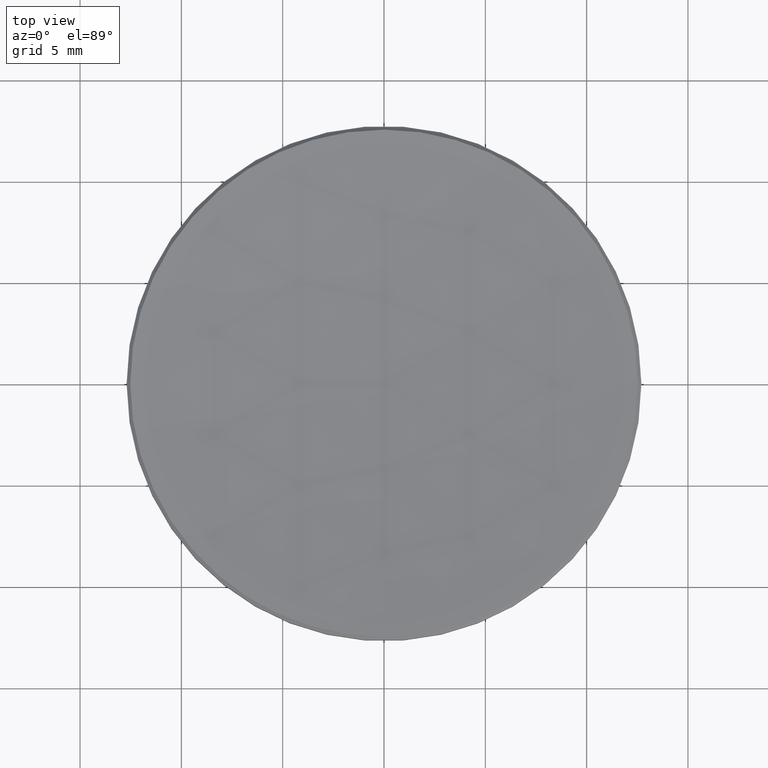
[diagram: clean part render]
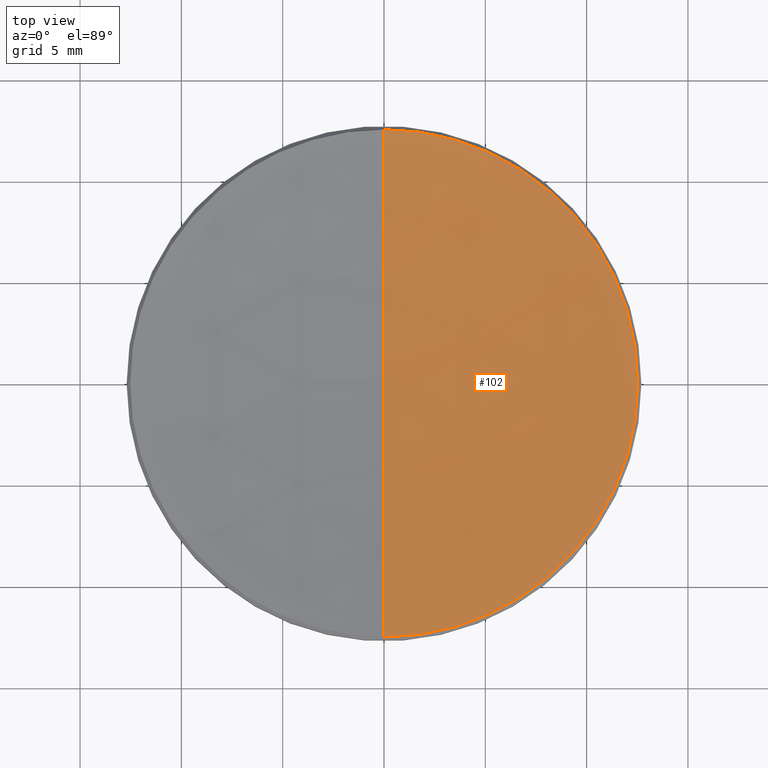
[diagram: same view with one face highlighted and labeled with its STEP entity id]
A machine part, top view. The second image highlights one B-rep face of the part: STEP entity #102.
In plain terms, the highlighted spherical surface has radius 106.9 mm.
Its self-contained STEP definition (entity closure, byte-faithful):
#9 = DIRECTION ( 'NONE',  ( 0.000000000000000000, 1.000000000000000000, 0.000000000000000000 ) ) ;
#18 = DIRECTION ( 'NONE',  ( -0.000000000000000000, -0.000000000000000000, 1.000000000000000000 ) ) ;
#21 = VERTEX_POINT ( 'NONE', #182 ) ;
#29 = ORIENTED_EDGE ( 'NONE', *, *, #225, .T. ) ;
#32 = VERTEX_POINT ( 'NONE', #134 ) ;
#37 = AXIS2_PLACEMENT_3D ( 'NONE', #142, #57, #9 ) ;
#43 = CIRCLE ( 'NONE', #159, 106.9000000000000057 ) ;
#44 = DIRECTION ( 'NONE',  ( 1.000000000000000000, 0.000000000000000000, 0.000000000000000000 ) ) ;
#57 = DIRECTION ( 'NONE',  ( -1.000000000000000000, 0.000000000000000000, 0.000000000000000000 ) ) ;
#66 = DIRECTION ( 'NONE',  ( -1.000000000000000000, 1.224646799147353207E-16, 0.000000000000000000 ) ) ;
#81 = CARTESIAN_POINT ( 'NONE',  ( 0.000000000000000000, 12.52123640383880421, 5.978763596161098093 ) ) ;
#99 = ORIENTED_EDGE ( 'NONE', *, *, #296, .F. ) ;
#102 = ADVANCED_FACE ( 'NONE', ( #191 ), #290, .F. ) ;
#118 = AXIS2_PLACEMENT_3D ( 'NONE', #271, #18, #200 ) ;
#130 = ORIENTED_EDGE ( 'NONE', *, *, #237, .T. ) ;
#134 = CARTESIAN_POINT ( 'NONE',  ( 12.52123640383887704, 1.544355321624999001E-15, 5.978763596161104310 ) ) ;
#142 = CARTESIAN_POINT ( 'NONE',  ( 0.000000000000000000, 0.000000000000000000, 112.1429225148808655 ) ) ;
#146 = DIRECTION ( 'NONE',  ( 0.000000000000000000, 0.000000000000000000, -1.000000000000000000 ) ) ;
#153 = VERTEX_POINT ( 'NONE', #81 ) ;
#159 = AXIS2_PLACEMENT_3D ( 'NONE', #216, #66, #179 ) ;
#160 = CIRCLE ( 'NONE', #311, 106.9000000000000057 ) ;
#164 = VERTEX_POINT ( 'NONE', #306 ) ;
#179 = DIRECTION ( 'NONE',  ( -1.224646799147353207E-16, -1.000000000000000000, 0.000000000000000000 ) ) ;
#182 = CARTESIAN_POINT ( 'NONE',  ( -1.533409208332850696E-15, -12.52123640383880421, 5.978763596161098093 ) ) ;
#187 = ORIENTED_EDGE ( 'NONE', *, *, #302, .T. ) ;
#191 = FACE_OUTER_BOUND ( 'NONE', #245, .T. ) ;
#195 = DIRECTION ( 'NONE',  ( 1.000000000000000000, 0.000000000000000000, 0.000000000000000000 ) ) ;
#200 = DIRECTION ( 'NONE',  ( 1.000000000000000000, 0.000000000000000000, 0.000000000000000000 ) ) ;
#214 = AXIS2_PLACEMENT_3D ( 'NONE', #298, #270, #44 ) ;
#216 = CARTESIAN_POINT ( 'NONE',  ( 0.000000000000000000, 0.000000000000000000, 112.1429225148808655 ) ) ;
#224 = CIRCLE ( 'NONE', #214, 12.52123640383887704 ) ;
#225 = EDGE_CURVE ( 'NONE', #164, #21, #43, .T. ) ;
#237 = EDGE_CURVE ( 'NONE', #21, #32, #329, .T. ) ;
#245 = EDGE_LOOP ( 'NONE', ( #99, #29, #130, #187 ) ) ;
#270 = DIRECTION ( 'NONE',  ( -0.000000000000000000, -0.000000000000000000, 1.000000000000000000 ) ) ;
#271 = CARTESIAN_POINT ( 'NONE',  ( 0.000000000000000000, 0.000000000000000000, 5.978763596161104310 ) ) ;
#272 = CARTESIAN_POINT ( 'NONE',  ( 0.000000000000000000, 0.000000000000000000, 112.1429225148808655 ) ) ;
#290 = SPHERICAL_SURFACE ( 'NONE', #37, 106.9000000000000057 ) ;
#296 = EDGE_CURVE ( 'NONE', #164, #153, #160, .T. ) ;
#298 = CARTESIAN_POINT ( 'NONE',  ( 0.000000000000000000, 0.000000000000000000, 5.978763596161104310 ) ) ;
#302 = EDGE_CURVE ( 'NONE', #32, #153, #224, .T. ) ;
#306 = CARTESIAN_POINT ( 'NONE',  ( 0.000000000000000000, 6.545737141442603608E-15, 5.242922514880857143 ) ) ;
#311 = AXIS2_PLACEMENT_3D ( 'NONE', #272, #195, #146 ) ;
#329 = CIRCLE ( 'NONE', #118, 12.52123640383887704 ) ;